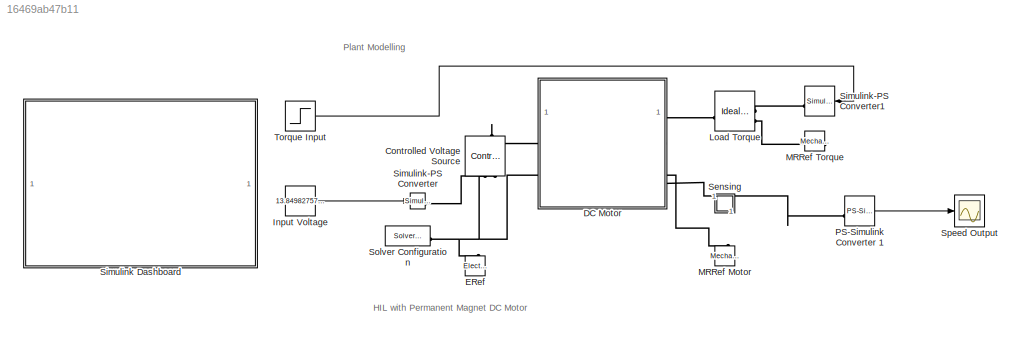
MODEL slx_16469ab47b11
KIND model
CONFIG AbsTol = 1e-3
CONFIG EnableMultiTasking = on
CONFIG FixedStep = auto
CONFIG MaxStep = 1e-2
CONFIG MinStep = auto
CONFIG RelTol = 1e-3
CONFIG SampleTimeConstraint = Unconstrained
CONFIG SolverName = FixedStepAuto
CONFIG StartTime = 0.0
CONFIG StopTime = inf
BLOCK [Reference] Controlled Voltage Source  REF=fl_lib/Electrical/Electrical Sources/Controlled Voltage
Source
  NameLocation = right
  SourceBlock = fl_lib/Electrical/Electrical Sources/Controlled Voltage\nSource
  SourceType = Controlled Voltage\nSource
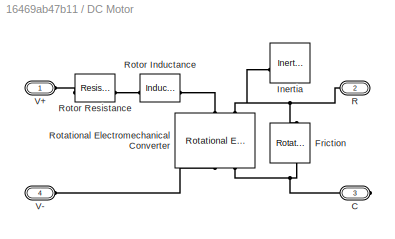
BLOCK [SubSystem] DC Motor
  Tag = PublishSubsystem
BLOCK [PMIOPort] DC Motor/C
  Port = 3
  Side = Right
BLOCK [Reference] DC Motor/Friction  REF=fl_lib/Mechanical/Rotational Elements/Rotational Friction
  NameLocation = right
  SourceBlock = fl_lib/Mechanical/Rotational Elements/Rotational Friction
  SourceType = Rotational Friction
BLOCK [Reference] DC Motor/Inertia  REF=fl_lib/Mechanical/Rotational Elements/Inertia
  NameLocation = top
  SourceBlock = fl_lib/Mechanical/Rotational Elements/Inertia
  SourceType = Inertia
BLOCK [PMIOPort] DC Motor/R
  Port = 2
  Side = Right
BLOCK [Reference] DC Motor/Rotational Electromechanical Converter  REF=fl_lib/Electrical/Electrical Elements/Rotational
Electromechanical
Converter
  NameLocation = left
  SourceBlock = fl_lib/Electrical/Electrical Elements/Rotational\nElectromechanical\nConverter
  SourceType = Rotational\nElectromechanical\nConverter
BLOCK [Reference] DC Motor/Rotor Inductance  REF=fl_lib/Electrical/Electrical Elements/Inductor
  SourceBlock = fl_lib/Electrical/Electrical Elements/Inductor
  SourceType = Inductor
BLOCK [Reference] DC Motor/Rotor Resistance  REF=fl_lib/Electrical/Electrical Elements/Resistor
  SourceBlock = fl_lib/Electrical/Electrical Elements/Resistor
  SourceType = Resistor
  Tag = Factory Generic
BLOCK [PMIOPort] DC Motor/V+
  Side = Left
BLOCK [PMIOPort] DC Motor/V-
  Port = 4
  Side = Left
BLOCK [Reference] ERef  REF=fl_lib/Electrical/Electrical Elements/Electrical Reference
  NameLocation = right
  SourceBlock = fl_lib/Electrical/Electrical Elements/Electrical Reference
  SourceType = Electrical Reference
BLOCK [Constant] Input Voltage
  Value = 13.84982757568359
BLOCK [Reference] Load Torque  REF=fl_lib/Mechanical/Mechanical Sources/Ideal Torque Source
  NameLocation = top
  SourceBlock = fl_lib/Mechanical/Mechanical Sources/Ideal Torque Source
  SourceType = Ideal Torque Source
BLOCK [Reference] MRRef Motor  REF=fl_lib/Mechanical/Rotational Elements/Mechanical
Rotational Reference
  NameLocation = left
  SourceBlock = fl_lib/Mechanical/Rotational Elements/Mechanical\nRotational Reference
  SourceType = Mechanical\nRotational Reference
BLOCK [Reference] MRRef Torque  REF=fl_lib/Mechanical/Rotational Elements/Mechanical
Rotational Reference
  SourceBlock = fl_lib/Mechanical/Rotational Elements/Mechanical\nRotational Reference
  SourceType = Mechanical\nRotational Reference
BLOCK [Reference] PS-Simulink Converter 1  REF=nesl_utility/PS-Simulink
Converter
  SourceBlock = nesl_utility/PS-Simulink\nConverter
  SourceType = PS-Simulink\nConverter
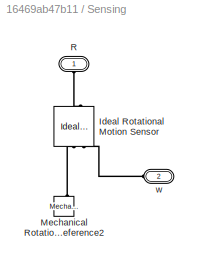
BLOCK [SubSystem] Sensing
  NameLocation = left
BLOCK [Reference] Sensing/Ideal Rotational Motion Sensor  REF=fl_lib/Mechanical/Mechanical Sensors/Ideal Rotational
Motion Sensor
  NameLocation = right
  SourceBlock = fl_lib/Mechanical/Mechanical Sensors/Ideal Rotational\nMotion Sensor
  SourceType = Ideal Rotational\nMotion Sensor
BLOCK [Reference] Sensing/Mechanical Rotational Reference2  REF=fl_lib/Mechanical/Rotational Elements/Mechanical
Rotational Reference
  NameLocation = left
  SourceBlock = fl_lib/Mechanical/Rotational Elements/Mechanical\nRotational Reference
  SourceType = Mechanical\nRotational Reference
BLOCK [PMIOPort] Sensing/R
  NameLocation = right
  Side = Left
BLOCK [PMIOPort] Sensing/w
  NameLocation = top
  Port = 2
  Side = Left
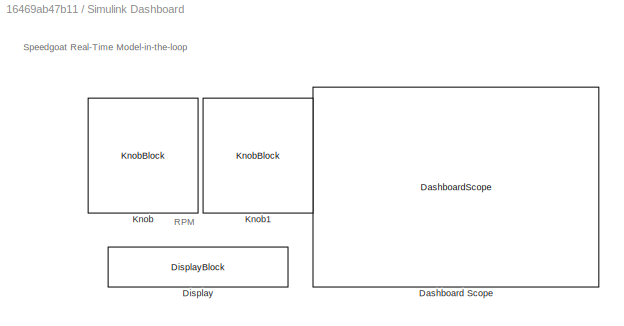
BLOCK [SubSystem] Simulink Dashboard
BLOCK [DashboardScope] Simulink Dashboard/Dashboard Scope
  Ymax = 500
  Ymin = 0
BLOCK [DisplayBlock] Simulink Dashboard/Display
  LabelPosition = Hide
  Transparency = 1
BLOCK [KnobBlock] Simulink Dashboard/Knob
  ScaleMax = 30
BLOCK [KnobBlock] Simulink Dashboard/Knob1
  ScaleMax = 1
BLOCK [Reference] Simulink-PS Converter  REF=nesl_utility/Simulink-PS
Converter
  SourceBlock = nesl_utility/Simulink-PS\nConverter
  SourceType = Simulink-PS\nConverter
BLOCK [Reference] Simulink-PS Converter1  REF=nesl_utility/Simulink-PS
Converter
  NameLocation = top
  SourceBlock = nesl_utility/Simulink-PS\nConverter
  SourceType = Simulink-PS\nConverter
BLOCK [Reference] Solver Configuration  REF=nesl_utility/Solver
Configuration
  SourceBlock = nesl_utility/Solver\nConfiguration
  SourceType = Solver\nConfiguration
BLOCK [Scope] Speed Output
  Floating = off
  NumInputPorts = 1
  ScopeSpecificationString = Simulink.scopes.TimeScopeBlockCfg('CurrentConfiguration', extmgr.ConfigurationSet(extmgr.Configuration('Core','General UI',true,'DisplayFullSourceName',false,'ShowMainToolbar',true,'FigureColor',[0.129411764705882 0.129411764705882 0.129411764705882]),extmgr.Configuration('Sources','WiredSimulink',true,'DataLogging',false,'DataLoggingVariableName','ScopeData','DataLoggingLimitDataPoints',false,'Da...<+2164ch>
BLOCK [Step] Torque Input
  After = 0.2258865102132162
  SampleTime = 0
ANNOTATION (root): HIL with Permanent Magnet DC Motor
ANNOTATION (root): Plant Modelling
ANNOTATION Simulink Dashboard: Speedgoat Real-Time Model-in-the-loop
ANNOTATION Simulink Dashboard: RPM
LINE Input Voltage:1 -> Simulink-PS Converter:1
LINE PS-Simulink Converter 1:1 -> Speed Output:1
LINE Torque Input:1 -> Simulink-PS Converter1:1
PLINE Controlled Voltage Source:LConn1 -- DC Motor:LConn1
PLINE Controlled Voltage Source:RConn1 -- Simulink-PS Converter:RConn1
PNET net1: Controlled Voltage Source:RConn2 -- DC Motor:LConn2 -- ERef:LConn1 -- Solver Configuration:RConn1
PNET net2: DC Motor/C:RConn1 -- DC Motor/Friction:RConn1 -- DC Motor/Rotational Electromechanical Converter:RConn2
PNET net3: DC Motor/Friction:LConn1 -- DC Motor/Inertia:LConn1 -- DC Motor/R:RConn1 -- DC Motor/Rotational Electromechanical Converter:LConn2
PLINE DC Motor/Rotational Electromechanical Converter:LConn1 -- DC Motor/Rotor Inductance:RConn1
PLINE DC Motor/Rotational Electromechanical Converter:RConn1 -- DC Motor/V-:RConn1
PLINE DC Motor/Rotor Inductance:LConn1 -- DC Motor/Rotor Resistance:RConn1
PLINE DC Motor/Rotor Resistance:LConn1 -- DC Motor/V+:RConn1
PNET net4: DC Motor:RConn1 -- Load Torque:LConn1 -- Sensing:LConn1
PLINE DC Motor:RConn2 -- MRRef Motor:LConn1
PLINE Load Torque:RConn1 -- Simulink-PS Converter1:RConn1
PLINE Load Torque:RConn2 -- MRRef Torque:LConn1
PLINE PS-Simulink Converter 1:LConn1 -- Sensing:LConn2
PLINE Sensing/Ideal Rotational Motion Sensor:LConn1 -- Sensing/R:RConn1
PLINE Sensing/Ideal Rotational Motion Sensor:RConn1 -- Sensing/Mechanical Rotational Reference2:LConn1
PLINE Sensing/Ideal Rotational Motion Sensor:RConn2 -- Sensing/w:RConn1
note: PNET lines group multi-terminal physical nets as a canonical sorted terminal list (undirected conserving connections); 2-terminal nets keep the pairwise PLINE form
